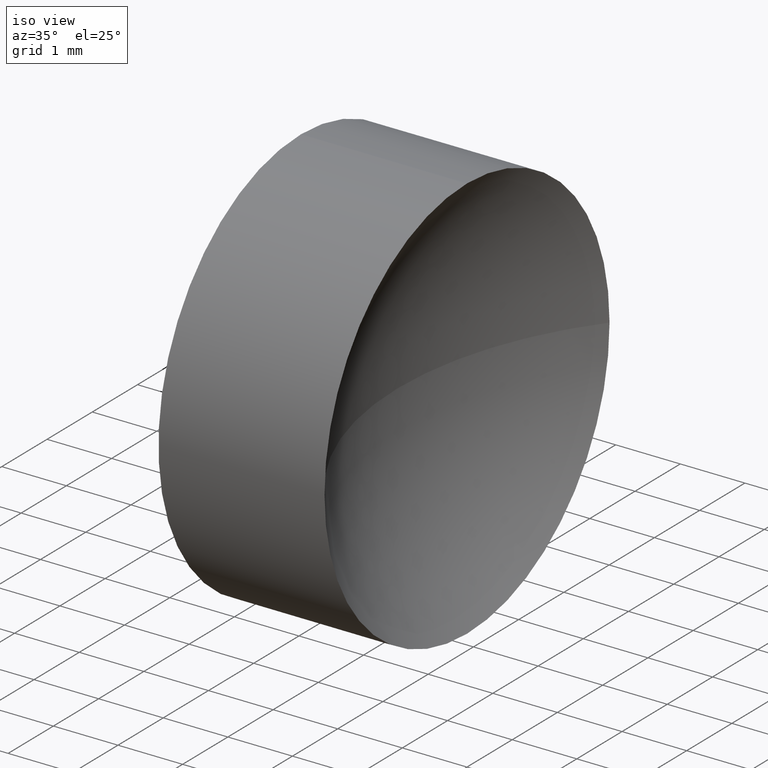
[diagram: clean part render]
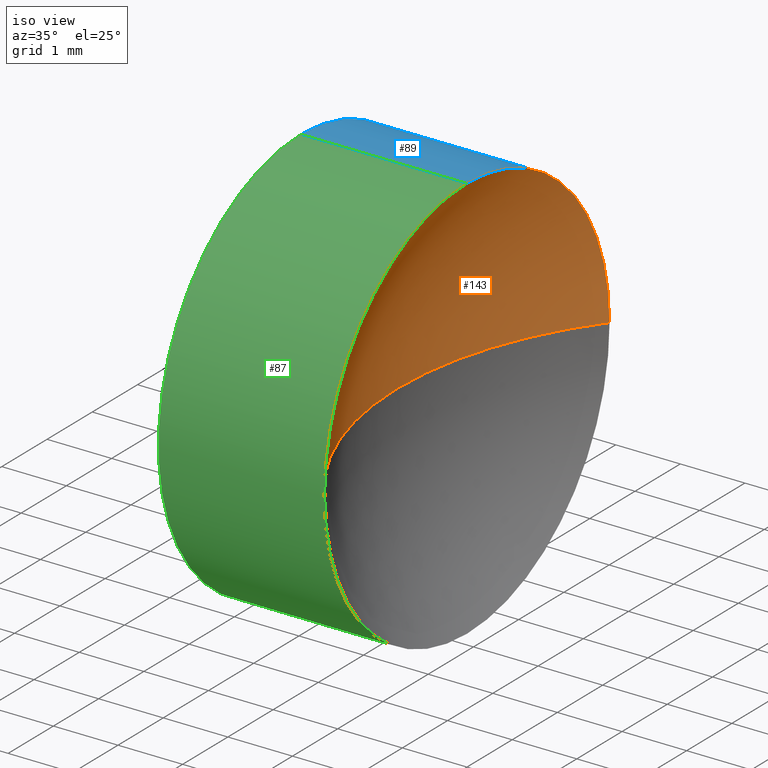
[diagram: same view with three faces highlighted in distinct colors, each labeled with its STEP entity id]
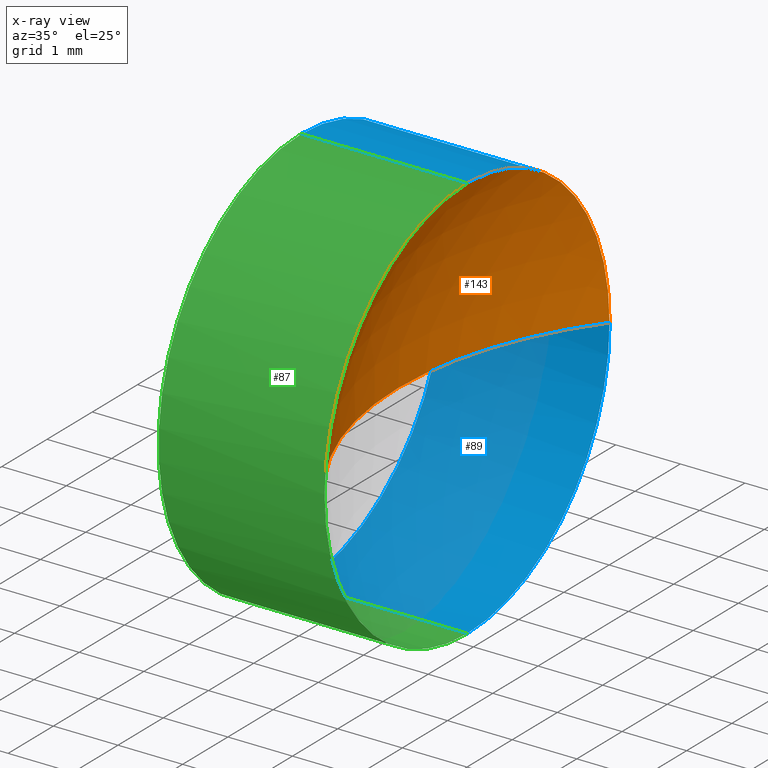
[diagram: x-ray of the same camera — body ghosted, the three highlighted faces saturated]
A machine part, iso view with three faces highlighted in distinct colors.
The next image is the same camera in x-ray (body ghosted, the three faces saturated) — at least one of them is partly hidden behind the body in this view.
Their STEP definitions:

[orange] entity #143 — the highlighted spherical surface has radius 5.17 mm.
#2 = CARTESIAN_POINT ( 'NONE',  ( 24.87970788047242400, 13.03112609140304000, 3.149999999999998100 ) ) ;
#6 = DIRECTION ( 'NONE',  ( 0.0000000000000000000, 0.0000000000000000000, -1.000000000000000000 ) ) ;
#8 = CARTESIAN_POINT ( 'NONE',  ( 24.87970788047242400, 13.03112609140304000, 0.0000000000000000000 ) ) ;
#9 = CARTESIAN_POINT ( 'NONE',  ( 24.87970788047242400, 13.03112609140304000, 0.0000000000000000000 ) ) ;
#10 = CIRCLE ( 'NONE', #96, 5.170000000000000800 ) ;
#13 = DIRECTION ( 'NONE',  ( 0.0000000000000000000, -1.224646799147353200E-016, 1.000000000000000000 ) ) ;
#20 = CIRCLE ( 'NONE', #145, 5.169999999999999000 ) ;
#23 = ORIENTED_EDGE ( 'NONE', *, *, #59, .F. ) ;
#32 = CARTESIAN_POINT ( 'NONE',  ( 28.97926883257449000, 13.03112609140304000, 0.0000000000000000000 ) ) ;
#39 = DIRECTION ( 'NONE',  ( 0.0000000000000000000, 0.0000000000000000000, 1.000000000000000000 ) ) ;
#41 = DIRECTION ( 'NONE',  ( 0.0000000000000000000, 0.0000000000000000000, 1.000000000000000000 ) ) ;
#57 = ORIENTED_EDGE ( 'NONE', *, *, #172, .T. ) ;
#59 = EDGE_CURVE ( 'NONE', #162, #176, #133, .T. ) ;
#61 = AXIS2_PLACEMENT_3D ( 'NONE', #9, #108, #83 ) ;
#62 = SPHERICAL_SURFACE ( 'NONE', #185, 5.169999999999999000 ) ;
#68 = CARTESIAN_POINT ( 'NONE',  ( 24.87970788047242400, 9.881126091403041700, 0.0000000000000000000 ) ) ;
#72 = AXIS2_PLACEMENT_3D ( 'NONE', #8, #82, #39 ) ;
#75 = EDGE_CURVE ( 'NONE', #123, #162, #95, .T. ) ;
#76 = CARTESIAN_POINT ( 'NONE',  ( 24.87970788047242400, 16.18112609140303700, 3.857637417314161200E-016 ) ) ;
#82 = DIRECTION ( 'NONE',  ( -1.000000000000000000, -0.0000000000000000000, -0.0000000000000000000 ) ) ;
#83 = DIRECTION ( 'NONE',  ( 0.0000000000000000000, 0.0000000000000000000, 1.000000000000000000 ) ) ;
#84 = CARTESIAN_POINT ( 'NONE',  ( 28.97926883257449000, 13.03112609140304000, 0.0000000000000000000 ) ) ;
#90 = EDGE_LOOP ( 'NONE', ( #121, #23, #117, #57 ) ) ;
#95 = CIRCLE ( 'NONE', #61, 3.149999999999998100 ) ;
#96 = AXIS2_PLACEMENT_3D ( 'NONE', #32, #6, #130 ) ;
#99 = EDGE_CURVE ( 'NONE', #176, #109, #20, .T. ) ;
#108 = DIRECTION ( 'NONE',  ( -1.000000000000000000, -0.0000000000000000000, -0.0000000000000000000 ) ) ;
#109 = VERTEX_POINT ( 'NONE', #165 ) ;
#112 = FACE_OUTER_BOUND ( 'NONE', #90, .T. ) ;
#117 = ORIENTED_EDGE ( 'NONE', *, *, #75, .F. ) ;
#121 = ORIENTED_EDGE ( 'NONE', *, *, #99, .F. ) ;
#123 = VERTEX_POINT ( 'NONE', #68 ) ;
#126 = DIRECTION ( 'NONE',  ( 0.0000000000000000000, -1.000000000000000000, -1.224646799147353200E-016 ) ) ;
#130 = DIRECTION ( 'NONE',  ( -1.000000000000000000, 0.0000000000000000000, 0.0000000000000000000 ) ) ;
#133 = CIRCLE ( 'NONE', #72, 3.149999999999998100 ) ;
#137 = CARTESIAN_POINT ( 'NONE',  ( 28.97926883257449000, 13.03112609140304000, 0.0000000000000000000 ) ) ;
#140 = DIRECTION ( 'NONE',  ( 0.0000000000000000000, -1.000000000000000000, 0.0000000000000000000 ) ) ;
#143 = ADVANCED_FACE ( 'NONE', ( #112 ), #62, .F. ) ;
#145 = AXIS2_PLACEMENT_3D ( 'NONE', #84, #13, #126 ) ;
#162 = VERTEX_POINT ( 'NONE', #2 ) ;
#165 = CARTESIAN_POINT ( 'NONE',  ( 23.80926883257448900, 13.03112609140304000, 0.0000000000000000000 ) ) ;
#172 = EDGE_CURVE ( 'NONE', #123, #109, #10, .T. ) ;
#176 = VERTEX_POINT ( 'NONE', #76 ) ;
#185 = AXIS2_PLACEMENT_3D ( 'NONE', #137, #41, #140 ) ;

[blue] entity #89 — the highlighted cylindrical surface (partial cylindrical patch) has radius 3.15 mm, axis along (-1, -0, -0).
#1 = DIRECTION ( 'NONE',  ( 0.0000000000000000000, 0.0000000000000000000, 1.000000000000000000 ) ) ;
#2 = CARTESIAN_POINT ( 'NONE',  ( 24.87970788047242400, 13.03112609140304000, 3.149999999999998100 ) ) ;
#8 = CARTESIAN_POINT ( 'NONE',  ( 24.87970788047242400, 13.03112609140304000, 0.0000000000000000000 ) ) ;
#11 = CARTESIAN_POINT ( 'NONE',  ( 20.68403063513288800, 13.03112609140304000, -3.149999999999998100 ) ) ;
#16 = ORIENTED_EDGE ( 'NONE', *, *, #93, .T. ) ;
#19 = DIRECTION ( 'NONE',  ( -1.000000000000000000, -0.0000000000000000000, -0.0000000000000000000 ) ) ;
#24 = DIRECTION ( 'NONE',  ( -1.000000000000000000, -0.0000000000000000000, -0.0000000000000000000 ) ) ;
#25 = DIRECTION ( 'NONE',  ( 0.0000000000000000000, 0.0000000000000000000, 1.000000000000000000 ) ) ;
#26 = VECTOR ( 'NONE', #19, 1000.000000000000000 ) ;
#34 = VECTOR ( 'NONE', #125, 1000.000000000000000 ) ;
#38 = VERTEX_POINT ( 'NONE', #177 ) ;
#39 = DIRECTION ( 'NONE',  ( 0.0000000000000000000, 0.0000000000000000000, 1.000000000000000000 ) ) ;
#40 = LINE ( 'NONE', #11, #34 ) ;
#42 = ORIENTED_EDGE ( 'NONE', *, *, #134, .F. ) ;
#59 = EDGE_CURVE ( 'NONE', #162, #176, #133, .T. ) ;
#60 = CARTESIAN_POINT ( 'NONE',  ( 22.30926883257449200, 13.03112609140304000, -3.149999999999998100 ) ) ;
#63 = FACE_OUTER_BOUND ( 'NONE', #152, .T. ) ;
#67 = EDGE_CURVE ( 'NONE', #162, #139, #170, .T. ) ;
#69 = ORIENTED_EDGE ( 'NONE', *, *, #59, .T. ) ;
#72 = AXIS2_PLACEMENT_3D ( 'NONE', #8, #82, #39 ) ;
#76 = CARTESIAN_POINT ( 'NONE',  ( 24.87970788047242400, 16.18112609140303700, 3.857637417314161200E-016 ) ) ;
#77 = CYLINDRICAL_SURFACE ( 'NONE', #181, 3.149999999999998100 ) ;
#78 = VERTEX_POINT ( 'NONE', #60 ) ;
#82 = DIRECTION ( 'NONE',  ( -1.000000000000000000, -0.0000000000000000000, -0.0000000000000000000 ) ) ;
#85 = CIRCLE ( 'NONE', #154, 3.149999999999998100 ) ;
#88 = CARTESIAN_POINT ( 'NONE',  ( 22.30926883257449200, 13.03112609140304000, 0.0000000000000000000 ) ) ;
#89 = ADVANCED_FACE ( 'NONE', ( #63 ), #77, .T. ) ;
#93 = EDGE_CURVE ( 'NONE', #176, #38, #164, .T. ) ;
#94 = DIRECTION ( 'NONE',  ( 0.0000000000000000000, 0.0000000000000000000, 1.000000000000000000 ) ) ;
#113 = ORIENTED_EDGE ( 'NONE', *, *, #158, .T. ) ;
#124 = CARTESIAN_POINT ( 'NONE',  ( 22.30926883257449200, 13.03112609140304000, 3.149999999999998100 ) ) ;
#125 = DIRECTION ( 'NONE',  ( -1.000000000000000000, -0.0000000000000000000, -0.0000000000000000000 ) ) ;
#133 = CIRCLE ( 'NONE', #72, 3.149999999999998100 ) ;
#134 = EDGE_CURVE ( 'NONE', #139, #78, #85, .T. ) ;
#139 = VERTEX_POINT ( 'NONE', #124 ) ;
#148 = ORIENTED_EDGE ( 'NONE', *, *, #67, .F. ) ;
#152 = EDGE_LOOP ( 'NONE', ( #16, #113, #42, #148, #69 ) ) ;
#154 = AXIS2_PLACEMENT_3D ( 'NONE', #88, #169, #1 ) ;
#158 = EDGE_CURVE ( 'NONE', #38, #78, #40, .T. ) ;
#159 = CARTESIAN_POINT ( 'NONE',  ( 20.68403063513288800, 13.03112609140304000, 0.0000000000000000000 ) ) ;
#162 = VERTEX_POINT ( 'NONE', #2 ) ;
#164 = CIRCLE ( 'NONE', #167, 3.149999999999998100 ) ;
#167 = AXIS2_PLACEMENT_3D ( 'NONE', #186, #24, #25 ) ;
#169 = DIRECTION ( 'NONE',  ( -1.000000000000000000, -0.0000000000000000000, -0.0000000000000000000 ) ) ;
#170 = LINE ( 'NONE', #179, #26 ) ;
#176 = VERTEX_POINT ( 'NONE', #76 ) ;
#177 = CARTESIAN_POINT ( 'NONE',  ( 24.87970788047242400, 13.03112609140304000, -3.149999999999998100 ) ) ;
#179 = CARTESIAN_POINT ( 'NONE',  ( 20.68403063513288800, 13.03112609140304000, 3.149999999999998100 ) ) ;
#180 = DIRECTION ( 'NONE',  ( -1.000000000000000000, -0.0000000000000000000, -0.0000000000000000000 ) ) ;
#181 = AXIS2_PLACEMENT_3D ( 'NONE', #159, #180, #94 ) ;
#186 = CARTESIAN_POINT ( 'NONE',  ( 24.87970788047242400, 13.03112609140304000, 0.0000000000000000000 ) ) ;

[green] entity #87 — the highlighted cylindrical surface (partial cylindrical patch) has radius 3.15 mm, axis along (-1, -0, -0).
#2 = CARTESIAN_POINT ( 'NONE',  ( 24.87970788047242400, 13.03112609140304000, 3.149999999999998100 ) ) ;
#9 = CARTESIAN_POINT ( 'NONE',  ( 24.87970788047242400, 13.03112609140304000, 0.0000000000000000000 ) ) ;
#11 = CARTESIAN_POINT ( 'NONE',  ( 20.68403063513288800, 13.03112609140304000, -3.149999999999998100 ) ) ;
#18 = ORIENTED_EDGE ( 'NONE', *, *, #50, .F. ) ;
#19 = DIRECTION ( 'NONE',  ( -1.000000000000000000, -0.0000000000000000000, -0.0000000000000000000 ) ) ;
#21 = CARTESIAN_POINT ( 'NONE',  ( 20.68403063513288800, 13.03112609140304000, 0.0000000000000000000 ) ) ;
#22 = AXIS2_PLACEMENT_3D ( 'NONE', #46, #163, #64 ) ;
#26 = VECTOR ( 'NONE', #19, 1000.000000000000000 ) ;
#34 = VECTOR ( 'NONE', #125, 1000.000000000000000 ) ;
#36 = CARTESIAN_POINT ( 'NONE',  ( 24.87970788047242400, 13.03112609140304000, 0.0000000000000000000 ) ) ;
#38 = VERTEX_POINT ( 'NONE', #177 ) ;
#40 = LINE ( 'NONE', #11, #34 ) ;
#46 = CARTESIAN_POINT ( 'NONE',  ( 22.30926883257449200, 13.03112609140304000, 0.0000000000000000000 ) ) ;
#49 = ORIENTED_EDGE ( 'NONE', *, *, #67, .T. ) ;
#50 = EDGE_CURVE ( 'NONE', #78, #139, #105, .T. ) ;
#52 = AXIS2_PLACEMENT_3D ( 'NONE', #21, #65, #160 ) ;
#53 = FACE_OUTER_BOUND ( 'NONE', #66, .T. ) ;
#60 = CARTESIAN_POINT ( 'NONE',  ( 22.30926883257449200, 13.03112609140304000, -3.149999999999998100 ) ) ;
#61 = AXIS2_PLACEMENT_3D ( 'NONE', #9, #108, #83 ) ;
#64 = DIRECTION ( 'NONE',  ( 0.0000000000000000000, 0.0000000000000000000, 1.000000000000000000 ) ) ;
#65 = DIRECTION ( 'NONE',  ( -1.000000000000000000, -0.0000000000000000000, -0.0000000000000000000 ) ) ;
#66 = EDGE_LOOP ( 'NONE', ( #103, #178, #138, #49, #18 ) ) ;
#67 = EDGE_CURVE ( 'NONE', #162, #139, #170, .T. ) ;
#68 = CARTESIAN_POINT ( 'NONE',  ( 24.87970788047242400, 9.881126091403041700, 0.0000000000000000000 ) ) ;
#75 = EDGE_CURVE ( 'NONE', #123, #162, #95, .T. ) ;
#78 = VERTEX_POINT ( 'NONE', #60 ) ;
#79 = EDGE_CURVE ( 'NONE', #38, #123, #98, .T. ) ;
#81 = DIRECTION ( 'NONE',  ( -1.000000000000000000, -0.0000000000000000000, -0.0000000000000000000 ) ) ;
#83 = DIRECTION ( 'NONE',  ( 0.0000000000000000000, 0.0000000000000000000, 1.000000000000000000 ) ) ;
#87 = ADVANCED_FACE ( 'NONE', ( #53 ), #100, .T. ) ;
#95 = CIRCLE ( 'NONE', #61, 3.149999999999998100 ) ;
#98 = CIRCLE ( 'NONE', #106, 3.149999999999998100 ) ;
#100 = CYLINDRICAL_SURFACE ( 'NONE', #52, 3.149999999999998100 ) ;
#103 = ORIENTED_EDGE ( 'NONE', *, *, #158, .F. ) ;
#105 = CIRCLE ( 'NONE', #22, 3.149999999999998100 ) ;
#106 = AXIS2_PLACEMENT_3D ( 'NONE', #36, #81, #135 ) ;
#108 = DIRECTION ( 'NONE',  ( -1.000000000000000000, -0.0000000000000000000, -0.0000000000000000000 ) ) ;
#123 = VERTEX_POINT ( 'NONE', #68 ) ;
#124 = CARTESIAN_POINT ( 'NONE',  ( 22.30926883257449200, 13.03112609140304000, 3.149999999999998100 ) ) ;
#125 = DIRECTION ( 'NONE',  ( -1.000000000000000000, -0.0000000000000000000, -0.0000000000000000000 ) ) ;
#135 = DIRECTION ( 'NONE',  ( 0.0000000000000000000, 0.0000000000000000000, 1.000000000000000000 ) ) ;
#138 = ORIENTED_EDGE ( 'NONE', *, *, #75, .T. ) ;
#139 = VERTEX_POINT ( 'NONE', #124 ) ;
#158 = EDGE_CURVE ( 'NONE', #38, #78, #40, .T. ) ;
#160 = DIRECTION ( 'NONE',  ( 0.0000000000000000000, 0.0000000000000000000, 1.000000000000000000 ) ) ;
#162 = VERTEX_POINT ( 'NONE', #2 ) ;
#163 = DIRECTION ( 'NONE',  ( -1.000000000000000000, -0.0000000000000000000, -0.0000000000000000000 ) ) ;
#170 = LINE ( 'NONE', #179, #26 ) ;
#177 = CARTESIAN_POINT ( 'NONE',  ( 24.87970788047242400, 13.03112609140304000, -3.149999999999998100 ) ) ;
#178 = ORIENTED_EDGE ( 'NONE', *, *, #79, .T. ) ;
#179 = CARTESIAN_POINT ( 'NONE',  ( 20.68403063513288800, 13.03112609140304000, 3.149999999999998100 ) ) ;